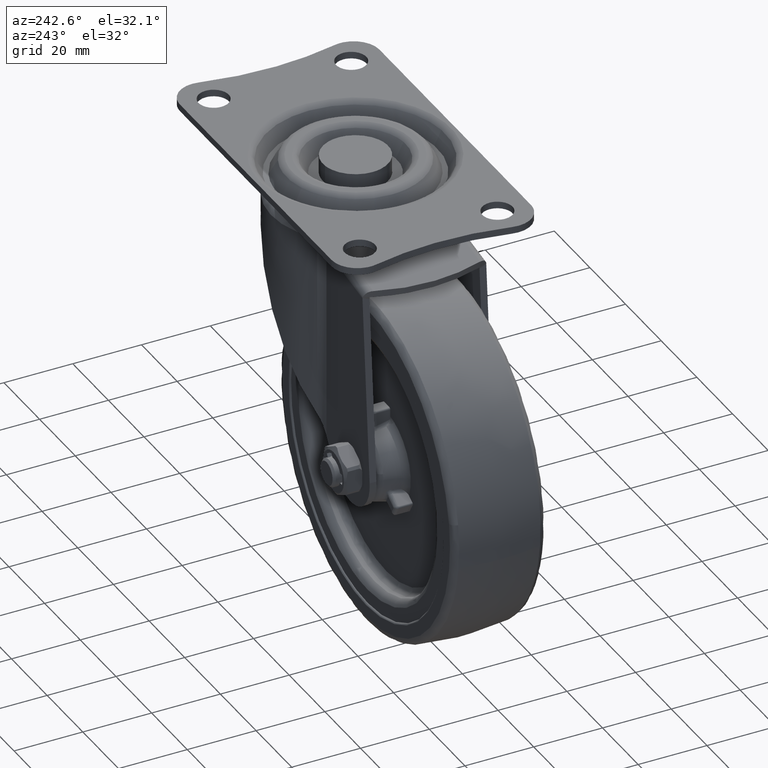
[diagram: clean part render]
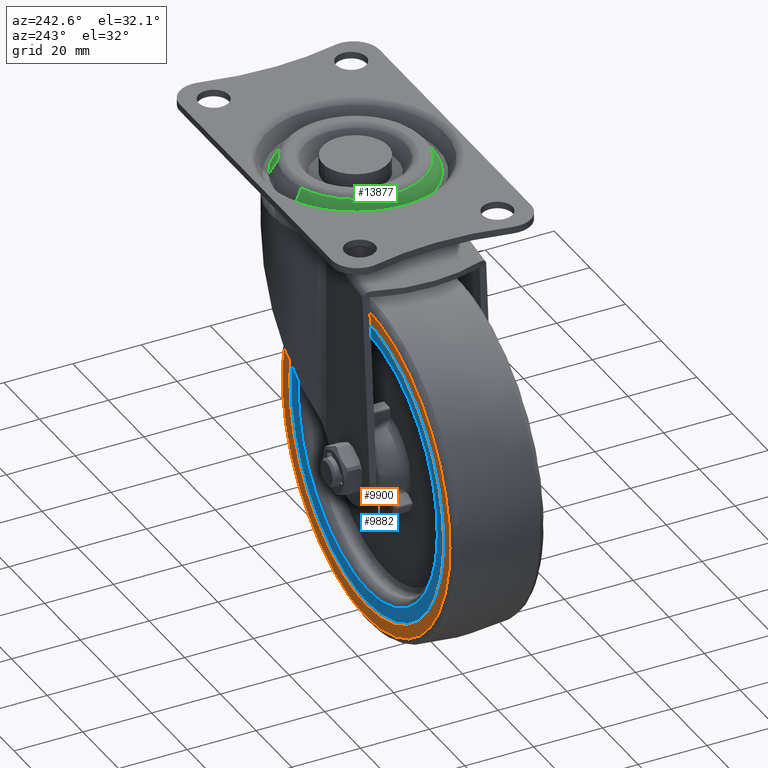
[diagram: same view with three faces highlighted in distinct colors, each labeled with its STEP entity id]
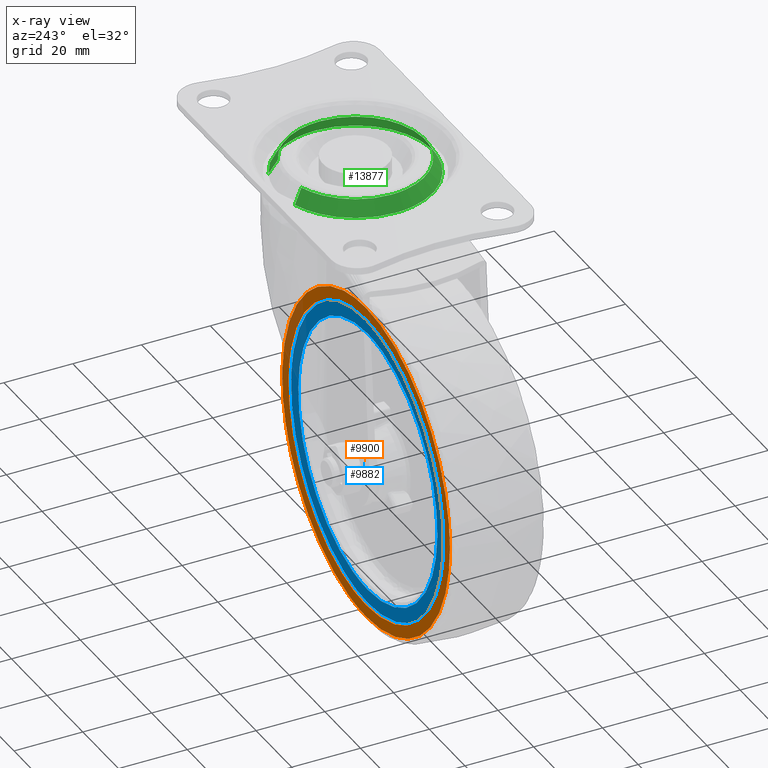
[diagram: x-ray of the same camera — body ghosted, the three highlighted faces saturated]
A machine part, auxiliary view with three faces highlighted in distinct colors.
The next image is the same camera in x-ray (body ghosted, the three faces saturated) — at least one of them is partly hidden behind the body in this view.
Their STEP definitions:

[orange] entity #9900 — the highlighted face is a freeform B-spline surface patch.
#2294=CARTESIAN_POINT('',(-75.486262223729597,13.500000000000000,-71.093159151754264));
#2295=VERTEX_POINT('',#2294);
#2309=CARTESIAN_POINT('',(-32.0,13.500000000000000,-26.500000000000011));
#2310=VERTEX_POINT('',#2309);
#2311=CARTESIAN_POINT('',(-75.486262223729597,13.499999999999998,-71.093159151754264));
#2312=CARTESIAN_POINT('',(-75.500000000000000,13.500000000000000,-70.546665897589804));
#2313=CARTESIAN_POINT('',(-75.500000000000000,13.500000000000000,-70.0));
#2314=CARTESIAN_POINT('',(-75.500000000000014,13.500000000000000,-26.500000000000014));
#2315=CARTESIAN_POINT('',(-32.0,13.500000000000000,-26.500000000000011));
#2323=(BOUNDED_CURVE()B_SPLINE_CURVE(2,(#2311,#2312,#2313,#2314,#2315),.UNSPECIFIED.,.F.,.U.)B_SPLINE_CURVE_WITH_KNOTS((3,2,3),(0.745579891768015,0.750000000000000,1.0),.UNSPECIFIED.)CURVE()GEOMETRIC_REPRESENTATION_ITEM()RATIONAL_B_SPLINE_CURVE((0.989826157677525,0.994821521089721,1.0,0.707106781186547,1.0))REPRESENTATION_ITEM(''));
#2324=EDGE_CURVE('',#2295,#2310,#2323,.T.);
#2326=CARTESIAN_POINT('',(11.486262223729611,13.500000000000000,-68.906840848245707));
#2327=VERTEX_POINT('',#2326);
#2328=CARTESIAN_POINT('',(-32.0,13.500000000000000,-26.500000000000011));
#2329=CARTESIAN_POINT('',(10.420237613423611,13.499999999999998,-26.500000000000011));
#2330=CARTESIAN_POINT('',(11.486262223729613,13.500000000000000,-68.906840848245707));
#2338=(BOUNDED_CURVE()B_SPLINE_CURVE(2,(#2328,#2329,#2330),.UNSPECIFIED.,.F.,.U.)B_SPLINE_CURVE_WITH_KNOTS((3,3),(0.0,0.245579891768015),.UNSPECIFIED.)CURVE()GEOMETRIC_REPRESENTATION_ITEM()RATIONAL_B_SPLINE_CURVE((1.0,0.712285260096827,0.989826157677525))REPRESENTATION_ITEM(''));
#2339=EDGE_CURVE('',#2310,#2327,#2338,.T.);
#2426=CARTESIAN_POINT('',(-32.0,13.500000000000000,-113.500000000000000));
#2427=VERTEX_POINT('',#2426);
#2428=CARTESIAN_POINT('',(11.486262223729611,13.499999999999998,-68.906840848245707));
#2429=CARTESIAN_POINT('',(11.500000000000002,13.500000000000000,-69.453334102410196));
#2430=CARTESIAN_POINT('',(11.500000000000000,13.500000000000000,-70.0));
#2431=CARTESIAN_POINT('',(11.499999999999996,13.500000000000000,-113.500000000000000));
#2432=CARTESIAN_POINT('',(-32.0,13.500000000000000,-113.500000000000000));
#2440=(BOUNDED_CURVE()B_SPLINE_CURVE(2,(#2428,#2429,#2430,#2431,#2432),.UNSPECIFIED.,.F.,.U.)B_SPLINE_CURVE_WITH_KNOTS((3,2,3),(0.245579891768015,0.250000000000000,0.500000000000000),.UNSPECIFIED.)CURVE()GEOMETRIC_REPRESENTATION_ITEM()RATIONAL_B_SPLINE_CURVE((0.989826157677525,0.994821521089721,1.0,0.707106781186547,1.0))REPRESENTATION_ITEM(''));
#2441=EDGE_CURVE('',#2327,#2427,#2440,.T.);
#2443=CARTESIAN_POINT('',(-32.0,13.500000000000000,-113.500000000000000));
#2444=CARTESIAN_POINT('',(-74.420237613423566,13.499999999999998,-113.500000000000010));
#2445=CARTESIAN_POINT('',(-75.486262223729597,13.500000000000004,-71.093159151754264));
#2453=(BOUNDED_CURVE()B_SPLINE_CURVE(2,(#2443,#2444,#2445),.UNSPECIFIED.,.F.,.U.)B_SPLINE_CURVE_WITH_KNOTS((3,3),(0.500000000000000,0.745579891768015),.UNSPECIFIED.)CURVE()GEOMETRIC_REPRESENTATION_ITEM()RATIONAL_B_SPLINE_CURVE((1.0,0.712285260096827,0.989826157677525))REPRESENTATION_ITEM(''));
#2454=EDGE_CURVE('',#2427,#2295,#2453,.T.);
#2489=CARTESIAN_POINT('',(-19.615983067021091,13.500000000000000,-24.639605876407749));
#2490=VERTEX_POINT('',#2489);
#2491=CARTESIAN_POINT('',(-32.0,13.500000000000000,-117.020519245974300));
#2492=VERTEX_POINT('',#2491);
#2493=CARTESIAN_POINT('',(-19.615983067021091,13.500000000000000,-24.639605876407760));
#2494=CARTESIAN_POINT('',(15.020519245974304,13.499999999999998,-34.095851563286764));
#2495=CARTESIAN_POINT('',(15.020519245974301,13.500000000000000,-70.0));
#2496=CARTESIAN_POINT('',(15.020519245974304,13.500000000000000,-117.020519245974310));
#2497=CARTESIAN_POINT('',(-32.0,13.500000000000000,-117.020519245974300));
#2505=(BOUNDED_CURVE()B_SPLINE_CURVE(2,(#2493,#2494,#2495,#2496,#2497),.UNSPECIFIED.,.F.,.U.)B_SPLINE_CURVE_WITH_KNOTS((3,2,3),(0.044901926750862,0.250000000000000,0.500000000000000),.UNSPECIFIED.)CURVE()GEOMETRIC_REPRESENTATION_ITEM()RATIONAL_B_SPLINE_CURVE((0.913685083902019,0.759712660614491,1.0,0.707106781186548,1.0))REPRESENTATION_ITEM(''));
#2506=EDGE_CURVE('',#2490,#2492,#2505,.T.);
#2572=CARTESIAN_POINT('',(-78.486918406683131,13.500000000000000,-62.936314792715507));
#2573=VERTEX_POINT('',#2572);
#2587=CARTESIAN_POINT('',(-32.0,13.500000000000000,-117.020519245974300));
#2588=CARTESIAN_POINT('',(-79.020519245974313,13.500000000000000,-117.020519245974310));
#2589=CARTESIAN_POINT('',(-79.020519245974313,13.500000000000000,-70.0));
#2590=CARTESIAN_POINT('',(-79.020519245974327,13.500000000000002,-66.448002912526874));
#2591=CARTESIAN_POINT('',(-78.486918406683131,13.499999999999996,-62.936314792715507));
#2599=(BOUNDED_CURVE()B_SPLINE_CURVE(2,(#2587,#2588,#2589,#2590,#2591),.UNSPECIFIED.,.F.,.U.)B_SPLINE_CURVE_WITH_KNOTS((3,2,3),(0.500000000000000,0.750000000000000,0.775897584626370),.UNSPECIFIED.)CURVE()GEOMETRIC_REPRESENTATION_ITEM()RATIONAL_B_SPLINE_CURVE((1.0,0.707106781186548,1.0,0.969659092317155,0.945604234429168))REPRESENTATION_ITEM(''));
#2600=EDGE_CURVE('',#2492,#2573,#2599,.T.);
#2628=CARTESIAN_POINT('',(-32.0,13.500000000000000,-22.979480754025712));
#2629=VERTEX_POINT('',#2628);
#2630=CARTESIAN_POINT('',(-32.0,13.500000000000000,-22.979480754025712));
#2631=CARTESIAN_POINT('',(-25.696718453158510,13.499999999999998,-22.979480754025708));
#2632=CARTESIAN_POINT('',(-19.615983067021091,13.500000000000000,-24.639605876407760));
#2640=(BOUNDED_CURVE()B_SPLINE_CURVE(2,(#2630,#2631,#2632),.UNSPECIFIED.,.F.,.U.)B_SPLINE_CURVE_WITH_KNOTS((3,3),(0.0,0.044901926750862),.UNSPECIFIED.)CURVE()GEOMETRIC_REPRESENTATION_ITEM()RATIONAL_B_SPLINE_CURVE((1.0,0.947394120572056,0.913685083902019))REPRESENTATION_ITEM(''));
#2641=EDGE_CURVE('',#2629,#2490,#2640,.T.);
#2643=CARTESIAN_POINT('',(-78.486918406683131,13.500000000000000,-62.936314792715514));
#2644=CARTESIAN_POINT('',(-72.415479215457964,13.500000000000000,-22.979480754025712));
#2645=CARTESIAN_POINT('',(-32.0,13.500000000000000,-22.979480754025712));
#2653=(BOUNDED_CURVE()B_SPLINE_CURVE(2,(#2643,#2644,#2645),.UNSPECIFIED.,.F.,.U.)B_SPLINE_CURVE_WITH_KNOTS((3,3),(0.775897584626371,1.0),.UNSPECIFIED.)CURVE()GEOMETRIC_REPRESENTATION_ITEM()RATIONAL_B_SPLINE_CURVE((0.945604234429167,0.737447688869394,1.0))REPRESENTATION_ITEM(''));
#2654=EDGE_CURVE('',#2573,#2629,#2653,.T.);
#9883=CARTESIAN_POINT('',(-83.704965905789820,13.500000000000000,-18.282131399603301));
#9884=CARTESIAN_POINT('',(-83.704965905789820,13.500000000000000,-121.717864396434710));
#9885=CARTESIAN_POINT('',(19.682771951962518,13.500000000000000,-18.282131399603301));
#9886=CARTESIAN_POINT('',(19.682771951962518,13.500000000000000,-121.717864396434710));
#9887=B_SPLINE_SURFACE_WITH_KNOTS('',1,1,((#9883,#9885),(#9884,#9886)),.UNSPECIFIED.,.F.,.F.,.U.,(2,2),(2,2),(0.0,103.435732996831400),(0.0,103.387737857752300),.UNSPECIFIED.);
#9888=ORIENTED_EDGE('',*,*,#2641,.T.);
#9889=ORIENTED_EDGE('',*,*,#2506,.T.);
#9890=ORIENTED_EDGE('',*,*,#2600,.T.);
#9891=ORIENTED_EDGE('',*,*,#2654,.T.);
#9892=EDGE_LOOP('',(#9888,#9889,#9890,#9891));
#9893=FACE_OUTER_BOUND('',#9892,.T.);
#9894=ORIENTED_EDGE('',*,*,#2339,.F.);
#9895=ORIENTED_EDGE('',*,*,#2324,.F.);
#9896=ORIENTED_EDGE('',*,*,#2454,.F.);
#9897=ORIENTED_EDGE('',*,*,#2441,.F.);
#9898=EDGE_LOOP('',(#9894,#9895,#9896,#9897));
#9899=FACE_BOUND('',#9898,.T.);
#9900=ADVANCED_FACE('',(#9893,#9899),#9887,.F.);

[blue] entity #9882 — the highlighted face is a freeform B-spline surface patch.
#2127=CARTESIAN_POINT('',(-70.987080565924771,13.0,-70.980058569035137));
#2128=VERTEX_POINT('',#2127);
#2142=CARTESIAN_POINT('',(-32.0,13.0,-31.000603000000009));
#2143=VERTEX_POINT('',#2142);
#2144=CARTESIAN_POINT('',(-70.987080565924771,12.999999999999996,-70.980058569035137));
#2145=CARTESIAN_POINT('',(-70.999396999999973,12.999999999999998,-70.490106675248740));
#2146=CARTESIAN_POINT('',(-70.999396999999988,13.0,-70.0));
#2147=CARTESIAN_POINT('',(-70.999397000000002,13.0,-31.000603000000016));
#2148=CARTESIAN_POINT('',(-32.0,13.0,-31.000603000000009));
#2156=(BOUNDED_CURVE()B_SPLINE_CURVE(2,(#2144,#2145,#2146,#2147,#2148),.UNSPECIFIED.,.F.,.U.)B_SPLINE_CURVE_WITH_KNOTS((3,2,3),(0.745579891766602,0.750000000000000,1.0),.UNSPECIFIED.)CURVE()GEOMETRIC_REPRESENTATION_ITEM()RATIONAL_B_SPLINE_CURVE((0.989826157674330,0.994821521088065,1.0,0.707106781186547,1.0))REPRESENTATION_ITEM(''));
#2157=EDGE_CURVE('',#2128,#2143,#2156,.T.);
#2159=CARTESIAN_POINT('',(6.987080565924773,13.0,-69.019941430964863));
#2160=VERTEX_POINT('',#2159);
#2161=CARTESIAN_POINT('',(-32.0,13.0,-31.000603000000009));
#2162=CARTESIAN_POINT('',(6.031349138088987,13.000000000000002,-31.000603000000016));
#2163=CARTESIAN_POINT('',(6.987080565924773,12.999999999999996,-69.019941430964863));
#2171=(BOUNDED_CURVE()B_SPLINE_CURVE(2,(#2161,#2162,#2163),.UNSPECIFIED.,.F.,.U.)B_SPLINE_CURVE_WITH_KNOTS((3,3),(0.0,0.245579891766602),.UNSPECIFIED.)CURVE()GEOMETRIC_REPRESENTATION_ITEM()RATIONAL_B_SPLINE_CURVE((1.0,0.712285260098483,0.989826157674330))REPRESENTATION_ITEM(''));
#2172=EDGE_CURVE('',#2143,#2160,#2171,.T.);
#2218=CARTESIAN_POINT('',(-32.0,13.0,-108.999397000000000));
#2219=VERTEX_POINT('',#2218);
#2220=CARTESIAN_POINT('',(6.987080565924773,12.999999999999998,-69.019941430964863));
#2221=CARTESIAN_POINT('',(6.999396999999997,13.0,-69.509893324751246));
#2222=CARTESIAN_POINT('',(6.999396999999997,13.0,-70.0));
#2223=CARTESIAN_POINT('',(6.999396999999997,13.0,-108.999397000000000));
#2224=CARTESIAN_POINT('',(-32.0,13.0,-108.999397000000000));
#2232=(BOUNDED_CURVE()B_SPLINE_CURVE(2,(#2220,#2221,#2222,#2223,#2224),.UNSPECIFIED.,.F.,.U.)B_SPLINE_CURVE_WITH_KNOTS((3,2,3),(0.245579891766602,0.250000000000000,0.500000000000000),.UNSPECIFIED.)CURVE()GEOMETRIC_REPRESENTATION_ITEM()RATIONAL_B_SPLINE_CURVE((0.989826157674330,0.994821521088065,1.0,0.707106781186547,1.0))REPRESENTATION_ITEM(''));
#2233=EDGE_CURVE('',#2160,#2219,#2232,.T.);
#2235=CARTESIAN_POINT('',(-32.0,13.0,-108.999397000000000));
#2236=CARTESIAN_POINT('',(-70.031349138088757,13.0,-108.999396999999970));
#2237=CARTESIAN_POINT('',(-70.987080565924771,12.999999999999996,-70.980058569035137));
#2245=(BOUNDED_CURVE()B_SPLINE_CURVE(2,(#2235,#2236,#2237),.UNSPECIFIED.,.F.,.U.)B_SPLINE_CURVE_WITH_KNOTS((3,3),(0.500000000000000,0.745579891766601),.UNSPECIFIED.)CURVE()GEOMETRIC_REPRESENTATION_ITEM()RATIONAL_B_SPLINE_CURVE((1.0,0.712285260098484,0.989826157674328))REPRESENTATION_ITEM(''));
#2246=EDGE_CURVE('',#2219,#2128,#2245,.T.);
#2275=CARTESIAN_POINT('',(-74.986420139180041,13.000000000338060,-71.080594104137404));
#2276=VERTEX_POINT('',#2275);
#2277=CARTESIAN_POINT('',(-32.0,13.0,-27.000000000000011));
#2278=VERTEX_POINT('',#2277);
#2279=CARTESIAN_POINT('',(-74.986420139180041,13.000000000338066,-71.080594104137404));
#2280=CARTESIAN_POINT('',(-75.0,13.000000000000007,-70.540382381379246));
#2281=CARTESIAN_POINT('',(-75.0,13.0,-70.0));
#2282=CARTESIAN_POINT('',(-75.000000000000014,13.000000000000002,-27.000000000000011));
#2283=CARTESIAN_POINT('',(-32.0,13.0,-27.000000000000011));
#2291=(BOUNDED_CURVE()B_SPLINE_CURVE(2,(#2279,#2280,#2281,#2282,#2283),.UNSPECIFIED.,.F.,.U.)B_SPLINE_CURVE_WITH_KNOTS((3,2,3),(0.745579891769206,0.750000000000000,1.0),.UNSPECIFIED.)CURVE()GEOMETRIC_REPRESENTATION_ITEM()RATIONAL_B_SPLINE_CURVE((0.989826157680217,0.994821521091116,1.0,0.707106781186548,1.0))REPRESENTATION_ITEM(''));
#2292=EDGE_CURVE('',#2276,#2278,#2291,.T.);
#2341=CARTESIAN_POINT('',(10.986420139180030,13.000000000338060,-68.919405895862582));
#2342=VERTEX_POINT('',#2341);
#2356=CARTESIAN_POINT('',(-32.0,13.0,-27.000000000000011));
#2357=CARTESIAN_POINT('',(9.932648675623694,13.000000000000002,-27.000000000000007));
#2358=CARTESIAN_POINT('',(10.986420139180034,13.000000000338067,-68.919405895862582));
#2366=(BOUNDED_CURVE()B_SPLINE_CURVE(2,(#2356,#2357,#2358),.UNSPECIFIED.,.F.,.U.)B_SPLINE_CURVE_WITH_KNOTS((3,3),(0.0,0.245579891769206),.UNSPECIFIED.)CURVE()GEOMETRIC_REPRESENTATION_ITEM()RATIONAL_B_SPLINE_CURVE((1.0,0.712285260095432,0.989826157680216))REPRESENTATION_ITEM(''));
#2367=EDGE_CURVE('',#2278,#2342,#2366,.T.);
#2395=CARTESIAN_POINT('',(-32.0,13.0,-113.0));
#2396=VERTEX_POINT('',#2395);
#2397=CARTESIAN_POINT('',(-32.0,13.0,-113.0));
#2398=CARTESIAN_POINT('',(-73.932648675623554,13.000000000000002,-113.000000000000010));
#2399=CARTESIAN_POINT('',(-74.986420139180041,13.000000000338066,-71.080594104137404));
#2407=(BOUNDED_CURVE()B_SPLINE_CURVE(2,(#2397,#2398,#2399),.UNSPECIFIED.,.F.,.U.)B_SPLINE_CURVE_WITH_KNOTS((3,3),(0.500000000000000,0.745579891769205),.UNSPECIFIED.)CURVE()GEOMETRIC_REPRESENTATION_ITEM()RATIONAL_B_SPLINE_CURVE((1.0,0.712285260095433,0.989826157680215))REPRESENTATION_ITEM(''));
#2408=EDGE_CURVE('',#2396,#2276,#2407,.T.);
#2410=CARTESIAN_POINT('',(10.986420139180034,13.000000000338067,-68.919405895862582));
#2411=CARTESIAN_POINT('',(10.999999999999998,12.999999999999998,-69.459617618620740));
#2412=CARTESIAN_POINT('',(11.0,13.0,-70.0));
#2413=CARTESIAN_POINT('',(10.999999999999996,13.000000000000002,-113.0));
#2414=CARTESIAN_POINT('',(-32.0,13.0,-113.0));
#2422=(BOUNDED_CURVE()B_SPLINE_CURVE(2,(#2410,#2411,#2412,#2413,#2414),.UNSPECIFIED.,.F.,.U.)B_SPLINE_CURVE_WITH_KNOTS((3,2,3),(0.245579891769206,0.250000000000000,0.500000000000000),.UNSPECIFIED.)CURVE()GEOMETRIC_REPRESENTATION_ITEM()RATIONAL_B_SPLINE_CURVE((0.989826157680216,0.994821521091116,1.0,0.707106781186548,1.0))REPRESENTATION_ITEM(''));
#2423=EDGE_CURVE('',#2342,#2396,#2422,.T.);
#9865=CARTESIAN_POINT('',(-79.280763344452083,13.0,-22.704300166684700));
#9866=CARTESIAN_POINT('',(-79.280763344452083,13.0,-117.295702140015090));
#9867=CARTESIAN_POINT('',(15.280765650423330,13.0,-22.704300166684700));
#9868=CARTESIAN_POINT('',(15.280765650423330,13.0,-117.295702140015090));
#9869=B_SPLINE_SURFACE_WITH_KNOTS('',1,1,((#9865,#9867),(#9866,#9868)),.UNSPECIFIED.,.F.,.F.,.U.,(2,2),(2,2),(0.0,94.591401973330349),(0.0,94.561528994875403),.UNSPECIFIED.);
#9870=ORIENTED_EDGE('',*,*,#2367,.T.);
#9871=ORIENTED_EDGE('',*,*,#2423,.T.);
#9872=ORIENTED_EDGE('',*,*,#2408,.T.);
#9873=ORIENTED_EDGE('',*,*,#2292,.T.);
#9874=EDGE_LOOP('',(#9870,#9871,#9872,#9873));
#9875=FACE_OUTER_BOUND('',#9874,.T.);
#9876=ORIENTED_EDGE('',*,*,#2172,.F.);
#9877=ORIENTED_EDGE('',*,*,#2157,.F.);
#9878=ORIENTED_EDGE('',*,*,#2246,.F.);
#9879=ORIENTED_EDGE('',*,*,#2233,.F.);
#9880=EDGE_LOOP('',(#9876,#9877,#9878,#9879));
#9881=FACE_BOUND('',#9880,.T.);
#9882=ADVANCED_FACE('',(#9875,#9881),#9869,.F.);

[green] entity #13877 — the highlighted face is a freeform B-spline surface patch.
#13711=CARTESIAN_POINT('',(8.332149648211669,18.197685364927764,1.105000025502251));
#13712=CARTESIAN_POINT('',(16.225558648550901,14.583540834650108,1.105000025502251));
#13713=CARTESIAN_POINT('',(18.980229960341209,6.350696107803158,1.105000025502251));
#13714=CARTESIAN_POINT('',(25.330926068144379,-12.629533852538048,1.105000025502251));
#13715=CARTESIAN_POINT('',(6.350696107803172,-18.980229960341219,1.105000025502251));
#13716=CARTESIAN_POINT('',(-12.629533852538032,-25.330926068144390,1.105000025502251));
#13717=CARTESIAN_POINT('',(-18.980229960341209,-6.350696107803186,1.105000025502251));
#13718=CARTESIAN_POINT('',(-25.330926068144379,12.629533852538019,1.105000025502251));
#13719=CARTESIAN_POINT('',(-6.350696107803172,18.980229960341191,1.105000025502251));
#13720=CARTESIAN_POINT('',(9.392742443513884,20.514054465830952,-3.307626025637603));
#13721=CARTESIAN_POINT('',(18.290897286113669,16.439868312223108,-3.307626025637603));
#13722=CARTESIAN_POINT('',(21.396208549184440,7.159071235647326,-3.307626025637603));
#13723=CARTESIAN_POINT('',(28.555279784831775,-14.237137313537115,-3.307626025637604));
#13724=CARTESIAN_POINT('',(7.159071235647340,-21.396208549184450,-3.307626025637603));
#13725=CARTESIAN_POINT('',(-14.237137313537101,-28.555279784831793,-3.307626025637604));
#13726=CARTESIAN_POINT('',(-21.396208549184440,-7.159071235647354,-3.307626025637603));
#13727=CARTESIAN_POINT('',(-28.555279784831775,14.237137313537085,-3.307626025637604));
#13728=CARTESIAN_POINT('',(-7.159071235647340,21.396208549184429,-3.307626025637603));
#13736=(BOUNDED_SURFACE()B_SPLINE_SURFACE(2,1,((#13711,#13720),(#13712,#13721),(#13713,#13722),(#13714,#13723),(#13715,#13724),(#13716,#13725),(#13717,#13726),(#13718,#13727),(#13719,#13728)),.UNSPECIFIED.,.F.,.F.,.U.)B_SPLINE_SURFACE_WITH_KNOTS((3,2,2,2,3),(2,2),(0.0,19.438730025159281,56.820903150465583,94.203076275771892,131.585249401078190),(0.0,5.095261676917501),.UNSPECIFIED.)GEOMETRIC_REPRESENTATION_ITEM()RATIONAL_B_SPLINE_SURFACE(((0.853787705168325,0.853787705168325),(0.847695526217005,0.847695526217005),(1.0,1.0),(0.707106781186548,0.707106781186548),(1.0,1.0),(0.707106781186548,0.707106781186548),(1.0,1.0),(0.707106781186548,0.707106781186548),(1.0,1.0)))REPRESENTATION_ITEM('')SURFACE());
#13737=CARTESIAN_POINT('',(8.357386835713317,18.252804201553619,1.000000000018117));
#13738=VERTEX_POINT('',#13737);
#13739=CARTESIAN_POINT('',(17.343373434551250,10.110300383655231,1.000000000188127));
#13740=VERTEX_POINT('',#13739);
#13741=CARTESIAN_POINT('',(8.357386835713317,18.252804201553626,1.000000000018117));
#13742=CARTESIAN_POINT('',(14.140232414368739,15.605020497751836,1.000000000084392));
#13743=CARTESIAN_POINT('',(17.343373434551250,10.110300383655225,1.000000000188127));
#13751=(BOUNDED_CURVE()B_SPLINE_CURVE(2,(#13741,#13742,#13743),.UNSPECIFIED.,.F.,.U.)B_SPLINE_CURVE_WITH_KNOTS((3,3),(0.320706039692637,0.414086837571186),.UNSPECIFIED.)CURVE()GEOMETRIC_REPRESENTATION_ITEM()RATIONAL_B_SPLINE_CURVE((0.881182210614092,0.833663089824575,0.867872643618600))REPRESENTATION_ITEM(''));
#13752=EDGE_CURVE('',#13738,#13740,#13751,.T.);
#13753=ORIENTED_EDGE('',*,*,#13752,.T.);
#13754=CARTESIAN_POINT('',(20.075128292053300,-1.421085E-014,1.0));
#13755=VERTEX_POINT('',#13754);
#13756=CARTESIAN_POINT('',(17.343373434551253,10.110300383655225,1.000000000188127));
#13757=CARTESIAN_POINT('',(20.075128292053297,5.424203747039922,1.0));
#13758=CARTESIAN_POINT('',(20.075128292053300,-1.421085E-014,1.0));
#13766=(BOUNDED_CURVE()B_SPLINE_CURVE(2,(#13756,#13757,#13758),.UNSPECIFIED.,.F.,.U.)B_SPLINE_CURVE_WITH_KNOTS((3,3),(0.414086837571186,0.500000000000000),.UNSPECIFIED.)CURVE()GEOMETRIC_REPRESENTATION_ITEM()RATIONAL_B_SPLINE_CURVE((0.867872643618600,0.899346469271126,1.0))REPRESENTATION_ITEM(''));
#13767=EDGE_CURVE('',#13740,#13755,#13766,.T.);
#13768=ORIENTED_EDGE('',*,*,#13767,.T.);
#13769=CARTESIAN_POINT('',(9.101844310852965,-17.893216761444371,1.000000000490000));
#13770=VERTEX_POINT('',#13769);
#13771=CARTESIAN_POINT('',(20.075128292053300,-1.421085E-014,1.0));
#13772=CARTESIAN_POINT('',(20.075128292053304,-12.311374004929657,1.0));
#13773=CARTESIAN_POINT('',(9.101844310852965,-17.893216761444364,1.000000000490000));
#13781=(BOUNDED_CURVE()B_SPLINE_CURVE(2,(#13771,#13772,#13773),.UNSPECIFIED.,.F.,.U.)B_SPLINE_CURVE_WITH_KNOTS((3,3),(0.500000000000000,0.672901120405518),.UNSPECIFIED.)CURVE()GEOMETRIC_REPRESENTATION_ITEM()RATIONAL_B_SPLINE_CURVE((1.0,0.797433737231903,0.875058944775505))REPRESENTATION_ITEM(''));
#13782=EDGE_CURVE('',#13755,#13770,#13781,.T.);
#13783=ORIENTED_EDGE('',*,*,#13782,.T.);
#13784=CARTESIAN_POINT('',(-20.075128292053300,-1.421085E-014,1.0));
#13785=VERTEX_POINT('',#13784);
#13786=CARTESIAN_POINT('',(9.101844310852965,-17.893216761444375,1.000000000490000));
#13787=CARTESIAN_POINT('',(4.812448158580778,-20.075128292053311,1.0));
#13788=CARTESIAN_POINT('',(0.0,-20.075128292053311,1.0));
#13789=CARTESIAN_POINT('',(-20.075128292053297,-20.075128292053311,1.0));
#13790=CARTESIAN_POINT('',(-20.075128292053300,-1.421085E-014,1.0));
#13798=(BOUNDED_CURVE()B_SPLINE_CURVE(2,(#13786,#13787,#13788,#13789,#13790),.UNSPECIFIED.,.F.,.U.)B_SPLINE_CURVE_WITH_KNOTS((3,2,3),(0.672901120405517,0.750000000000000,1.0),.UNSPECIFIED.)CURVE()GEOMETRIC_REPRESENTATION_ITEM()RATIONAL_B_SPLINE_CURVE((0.875058944775505,0.909673043954644,1.0,0.707106781186548,1.0))REPRESENTATION_ITEM(''));
#13799=EDGE_CURVE('',#13770,#13785,#13798,.T.);
#13800=ORIENTED_EDGE('',*,*,#13799,.T.);
#13801=CARTESIAN_POINT('',(-6.369931685050378,19.037719040640830,0.999999999991826));
#13802=VERTEX_POINT('',#13801);
#13803=CARTESIAN_POINT('',(-20.075128292053300,-1.421085E-014,1.0));
#13804=CARTESIAN_POINT('',(-20.075128292053304,14.452024402995709,1.0));
#13805=CARTESIAN_POINT('',(-6.369931685050378,19.037719040640827,0.999999999991826));
#13813=(BOUNDED_CURVE()B_SPLINE_CURVE(2,(#13803,#13804,#13805),.UNSPECIFIED.,.F.,.U.)B_SPLINE_CURVE_WITH_KNOTS((3,3),(0.0,0.196058979253200),.UNSPECIFIED.)CURVE()GEOMETRIC_REPRESENTATION_ITEM()RATIONAL_B_SPLINE_CURVE((1.0,0.770302617957001,0.900879109997864))REPRESENTATION_ITEM(''));
#13814=EDGE_CURVE('',#13785,#13802,#13813,.T.);
#13815=ORIENTED_EDGE('',*,*,#13814,.T.);
#13816=CARTESIAN_POINT('',(-7.139354769148705,21.337282242131320,-3.200001000005416));
#13817=VERTEX_POINT('',#13816);
#13818=CARTESIAN_POINT('',(-6.369931685050378,19.037719040640830,0.999999999991826));
#13819=CARTESIAN_POINT('',(-7.139354769148705,21.337282242131320,-3.200001000005416));
#13820=QUASI_UNIFORM_CURVE('',1,(#13818,#13819),.UNSPECIFIED.,.F.,.U.);
#13821=EDGE_CURVE('',#13802,#13817,#13820,.T.);
#13822=ORIENTED_EDGE('',*,*,#13821,.T.);
#13823=CARTESIAN_POINT('',(-22.500000000000000,-1.421085E-014,-3.200001000000045));
#13824=VERTEX_POINT('',#13823);
#13825=CARTESIAN_POINT('',(-22.500000000000000,-1.421085E-014,-3.200001000000045));
#13826=CARTESIAN_POINT('',(-22.500000000000007,16.197682243300285,-3.200001000000046));
#13827=CARTESIAN_POINT('',(-7.139354769148705,21.337282242131312,-3.200001000005416));
#13835=(BOUNDED_CURVE()B_SPLINE_CURVE(2,(#13825,#13826,#13827),.UNSPECIFIED.,.F.,.U.)B_SPLINE_CURVE_WITH_KNOTS((3,3),(0.0,0.196058979253555),.UNSPECIFIED.)CURVE()GEOMETRIC_REPRESENTATION_ITEM()RATIONAL_B_SPLINE_CURVE((1.0,0.770302617956586,0.900879109998337))REPRESENTATION_ITEM(''));
#13836=EDGE_CURVE('',#13824,#13817,#13835,.T.);
#13837=ORIENTED_EDGE('',*,*,#13836,.F.);
#13838=CARTESIAN_POINT('',(22.500000000000000,-1.421085E-014,-3.200001000000045));
#13839=VERTEX_POINT('',#13838);
#13840=CARTESIAN_POINT('',(22.500000000000000,-1.421085E-014,-3.200001000000045));
#13841=CARTESIAN_POINT('',(22.500000000000000,-22.500000000000014,-3.200001000000045));
#13842=CARTESIAN_POINT('',(0.0,-22.500000000000011,-3.200001000000045));
#13843=CARTESIAN_POINT('',(-22.500000000000000,-22.500000000000014,-3.200001000000045));
#13844=CARTESIAN_POINT('',(-22.500000000000000,-1.421085E-014,-3.200001000000045));
#13852=(BOUNDED_CURVE()B_SPLINE_CURVE(2,(#13840,#13841,#13842,#13843,#13844),.UNSPECIFIED.,.F.,.U.)B_SPLINE_CURVE_WITH_KNOTS((3,2,3),(0.500000000000000,0.750000000000000,1.0),.UNSPECIFIED.)CURVE()GEOMETRIC_REPRESENTATION_ITEM()RATIONAL_B_SPLINE_CURVE((1.0,0.707106781186548,1.0,0.707106781186548,1.0))REPRESENTATION_ITEM(''));
#13853=EDGE_CURVE('',#13839,#13824,#13852,.T.);
#13854=ORIENTED_EDGE('',*,*,#13853,.F.);
#13855=CARTESIAN_POINT('',(9.366874326641515,20.457557658459979,-3.200001000012031));
#13856=VERTEX_POINT('',#13855);
#13857=CARTESIAN_POINT('',(9.366874326641515,20.457557658459979,-3.200001000012031));
#13858=CARTESIAN_POINT('',(22.499999999999993,14.444311123678945,-3.200001000000046));
#13859=CARTESIAN_POINT('',(22.500000000000000,-1.421085E-014,-3.200001000000045));
#13867=(BOUNDED_CURVE()B_SPLINE_CURVE(2,(#13857,#13858,#13859),.UNSPECIFIED.,.F.,.U.)B_SPLINE_CURVE_WITH_KNOTS((3,3),(0.320706039691942,0.500000000000000),.UNSPECIFIED.)CURVE()GEOMETRIC_REPRESENTATION_ITEM()RATIONAL_B_SPLINE_CURVE((0.881182210614799,0.789944059406246,1.0))REPRESENTATION_ITEM(''));
#13868=EDGE_CURVE('',#13856,#13839,#13867,.T.);
#13869=ORIENTED_EDGE('',*,*,#13868,.F.);
#13870=CARTESIAN_POINT('',(8.357386835713317,18.252804201553619,1.000000000018117));
#13871=CARTESIAN_POINT('',(9.366874326641515,20.457557658459979,-3.200001000012031));
#13872=QUASI_UNIFORM_CURVE('',1,(#13870,#13871),.UNSPECIFIED.,.F.,.U.);
#13873=EDGE_CURVE('',#13738,#13856,#13872,.T.);
#13874=ORIENTED_EDGE('',*,*,#13873,.F.);
#13875=EDGE_LOOP('',(#13753,#13768,#13783,#13800,#13815,#13822,#13837,#13854,#13869,#13874));
#13876=FACE_OUTER_BOUND('',#13875,.T.);
#13877=ADVANCED_FACE('',(#13876),#13736,.T.);